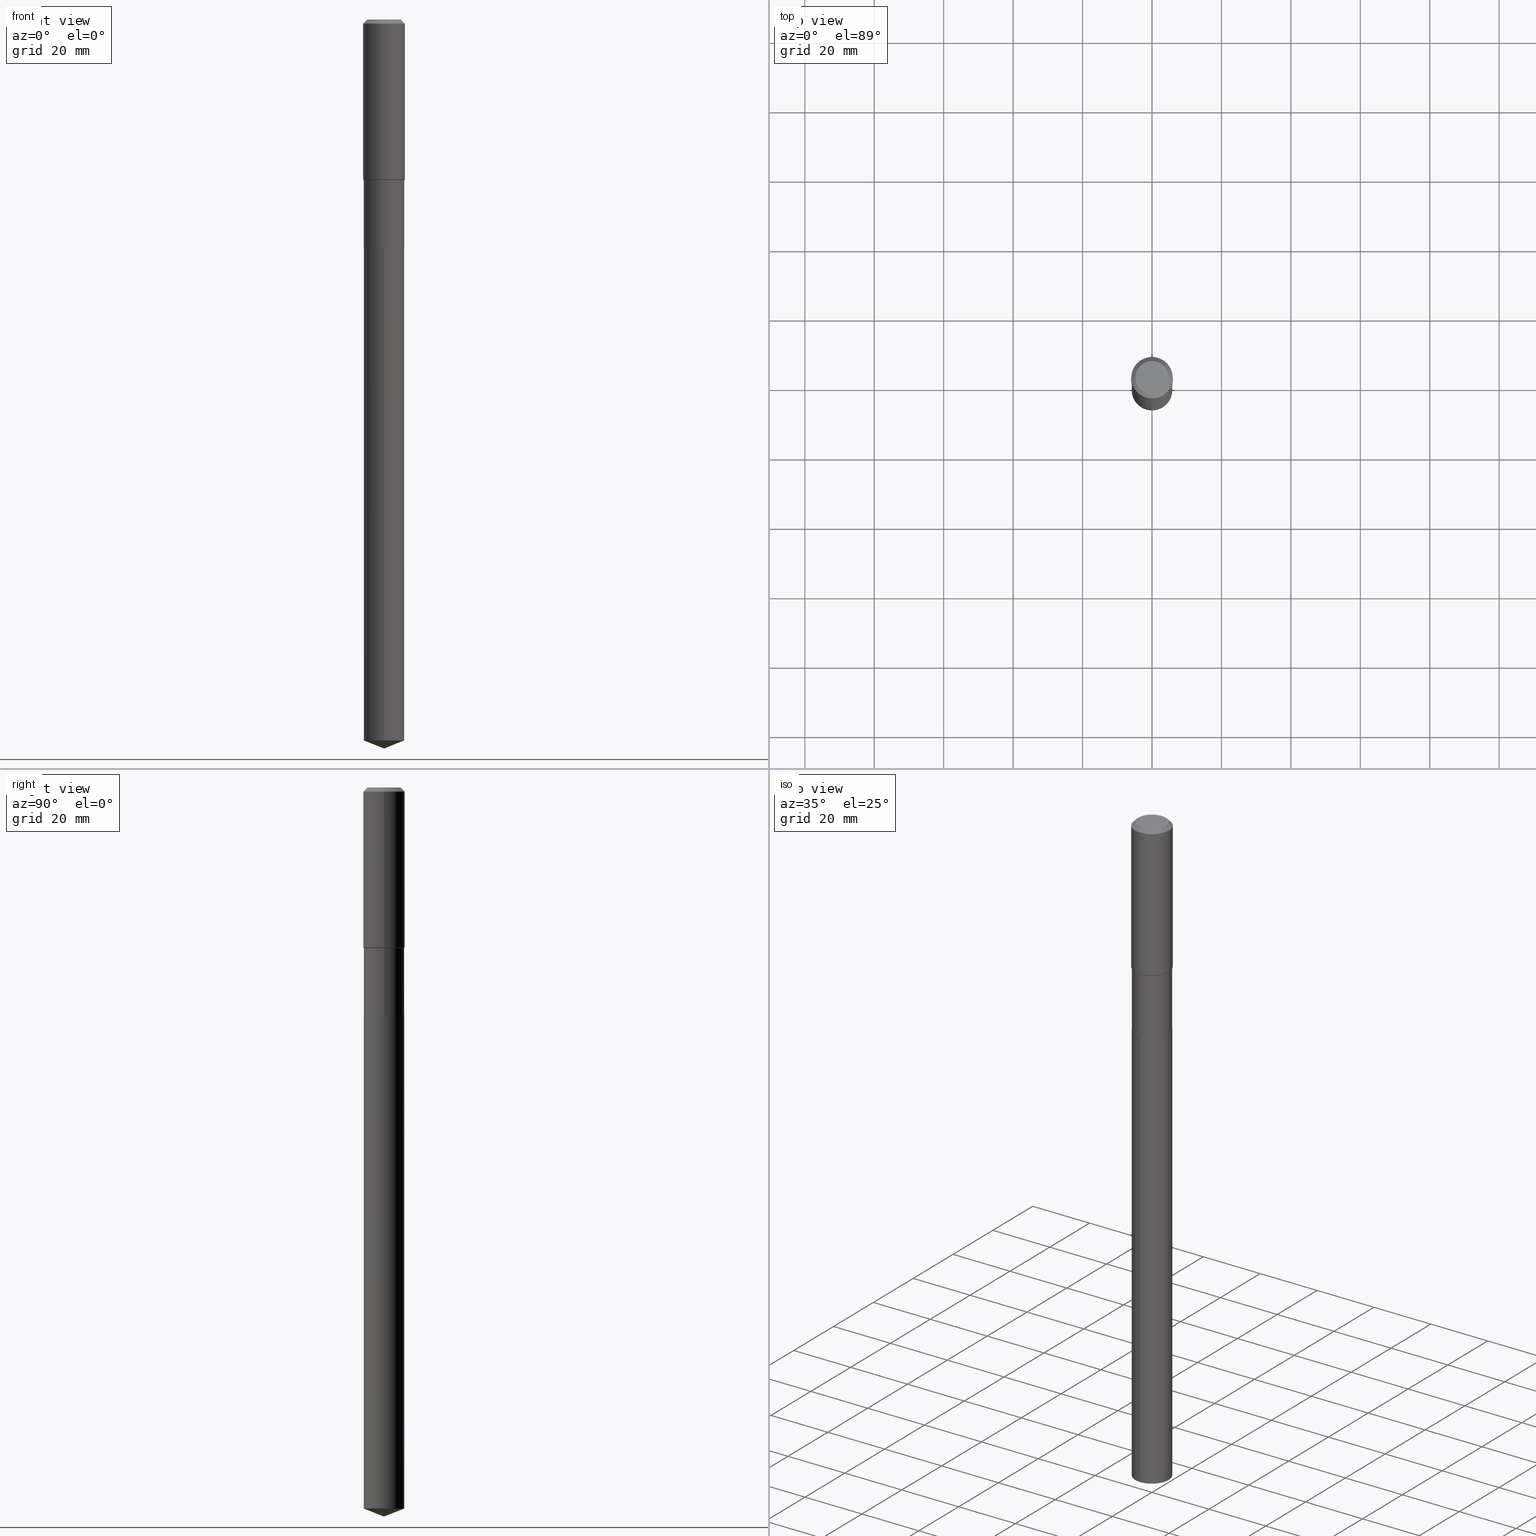
[diagram: canonical four-view strip — front | top / right | iso, engineering-drawing reading convention]
A machine part, canonical four-view strip (front | top / right | iso — engineering-drawing reading convention). The complete STEP part file that produces these views, byte-faithful:
ISO-10303-21;
HEADER;
FILE_DESCRIPTION (( 'STEP AP203' ),
    '1' );
FILE_NAME ('66796.STEP',
    '2024-04-25T06:29:27',
    ( '' ),
    ( '' ),
    'SwSTEP 2.0',
    'SolidWorks 2023',
    '' );
FILE_SCHEMA (( 'CONFIG_CONTROL_DESIGN' ));
ENDSEC;

DATA;
#1 = DIRECTION ( 'NONE',  ( -6.982962677686265922E-15, -1.000000000000000000, 2.372425526412734110E-15 ) ) ;
#2 = EDGE_CURVE ( 'NONE', #56, #345, #234, .T. ) ;
#3 = EDGE_LOOP ( 'NONE', ( #300, #90, #488 ) ) ;
#4 = CONICAL_SURFACE ( 'NONE', #437, 0.2362000000000000210, 0.7853981633974452814 ) ;
#5 = EDGE_CURVE ( 'NONE', #24, #431, #145, .T. ) ;
#6 = PERSON_AND_ORGANIZATION_ROLE ( 'creator' ) ;
#7 = CC_DESIGN_PERSON_AND_ORGANIZATION_ASSIGNMENT ( #400, #146, ( #465 ) ) ;
#8 = CARTESIAN_POINT ( 'NONE',  ( -0.1889600000000000168, 1.401969416799070942E-15, 3.855188123706346622E-18 ) ) ;
#9 = CARTESIAN_POINT ( 'NONE',  ( 2.021924230409164922E-28, -2.886741643243158551E-14, -8.268000000000000682 ) ) ;
#10 = AXIS2_PLACEMENT_3D ( 'NONE', #478, #484, #212 ) ;
#11 = CLOSED_SHELL ( 'NONE', ( #291, #388, #227, #220, #374, #454, #357, #263, #418, #473, #260, #140 ) ) ;
#12 = EDGE_LOOP ( 'NONE', ( #273, #65, #428, #258 ) ) ;
#13 = EDGE_CURVE ( 'NONE', #477, #326, #439, .T. ) ;
#14 = LINE ( 'NONE', #232, #89 ) ;
#15 = CARTESIAN_POINT ( 'NONE',  ( -7.605959371775300167E-28, 1.085917112331004795E-13, 31.10207874015748430 ) ) ;
#16 = EDGE_CURVE ( 'NONE', #102, #243, #286, .T. ) ;
#17 = LINE ( 'NONE', #316, #254 ) ;
#18 = DIRECTION ( 'NONE',  ( -2.438088387897960049E-29, 3.491481338843145188E-15, 1.000000000000000000 ) ) ;
#19 = CONICAL_SURFACE ( 'NONE', #404, 99.94676754584043010, 1.195550537616121067 ) ;
#20 = DIRECTION ( 'NONE',  ( 1.000000000000000000, -6.982962677686266711E-15, 4.876176775795935793E-29 ) ) ;
#21 = AXIS2_PLACEMENT_3D ( 'NONE', #272, #52, #421 ) ;
#22 = AXIS2_PLACEMENT_3D ( 'NONE', #15, #166, #276 ) ;
#23 = EDGE_CURVE ( 'NONE', #431, #477, #370, .T. ) ;
#24 = VERTEX_POINT ( 'NONE', #419 ) ;
#25 = DIRECTION ( 'NONE',  ( -2.445468806185136877E-29, 3.491481338843145188E-15, 1.000000000000000000 ) ) ;
#26 = ORIENTED_EDGE ( 'NONE', *, *, #5, .T. ) ;
#27 = DATE_TIME_ROLE ( 'creation_date' ) ;
#28 = APPLICATION_CONTEXT ( 'configuration controlled 3d designs of mechanical parts and assemblies' ) ;
#29 = DIRECTION ( 'NONE',  ( -2.445481582703130490E-29, 3.491463042142184116E-15, 1.000000000000000000 ) ) ;
#30 = EDGE_CURVE ( 'NONE', #386, #345, #470, .T. ) ;
#31 = VECTOR ( 'NONE', #208, 39.37007874015748854 ) ;
#32 = EDGE_LOOP ( 'NONE', ( #150, #416, #26, #303 ) ) ;
#33 = FACE_OUTER_BOUND ( 'NONE', #3, .T. ) ;
#34 = APPROVAL_ROLE ( '' ) ;
#35 = CYLINDRICAL_SURFACE ( 'NONE', #61, 0.2303000000000000047 ) ;
#36 = DIRECTION ( 'NONE',  ( -2.445468806185136597E-29, 3.491481338843145583E-15, 1.000000000000000000 ) ) ;
#37 = EDGE_CURVE ( 'NONE', #128, #198, #335, .T. ) ;
#38 = DIRECTION ( 'NONE',  ( -2.445468806185136597E-29, 3.491481338843145583E-15, 1.000000000000000000 ) ) ;
#39 = ORIENTED_EDGE ( 'NONE', *, *, #364, .T. ) ;
#40 = CARTESIAN_POINT ( 'NONE',  ( -0.2362000000000002431, -4.658736688134951629E-15, -1.814999999999999947 ) ) ;
#41 = ORIENTED_EDGE ( 'NONE', *, *, #16, .T. ) ;
#42 = FACE_OUTER_BOUND ( 'NONE', #410, .T. ) ;
#43 = DIMENSIONAL_EXPONENTS ( 1.000000000000000000, 0.000000000000000000, 0.000000000000000000, 0.000000000000000000, 0.000000000000000000, 0.000000000000000000, 0.000000000000000000 ) ;
#44 = ORIENTED_EDGE ( 'NONE', *, *, #456, .T. ) ;
#45 = ORIENTED_EDGE ( 'NONE', *, *, #5, .F. ) ;
#46 = EDGE_CURVE ( 'NONE', #198, #128, #297, .T. ) ;
#47 = CONICAL_SURFACE ( 'NONE', #414, 0.2298000000000000043, 0.7853981633972775267 ) ;
#48 = ORIENTED_EDGE ( 'NONE', *, *, #46, .F. ) ;
#49 = CARTESIAN_POINT ( 'NONE',  ( 6.311510441883220673E-29, -9.011164187420277631E-15, -2.580900000000001082 ) ) ;
#50 = VERTEX_POINT ( 'NONE', #281 ) ;
#51 = EDGE_LOOP ( 'NONE', ( #337, #455, #293, #75 ) ) ;
#52 = DIRECTION ( 'NONE',  ( -2.445468806185136597E-29, 3.491481338843145583E-15, 1.000000000000000000 ) ) ;
#53 = EDGE_CURVE ( 'NONE', #431, #114, #197, .T. ) ;
#54 = CARTESIAN_POINT ( 'NONE',  ( -1.608176304670946895E-15, -0.2303000000000284819, -8.177282417465878694 ) ) ;
#55 = CONICAL_SURFACE ( 'NONE', #121, 0.2302999999999998937, 0.7853981633974482790 ) ;
#56 = VERTEX_POINT ( 'NONE', #8 ) ;
#57 = CC_DESIGN_PERSON_AND_ORGANIZATION_ASSIGNMENT ( #432, #302, ( #483 ) ) ;
#58 = CARTESIAN_POINT ( 'NONE',  ( 1.999736057355965212E-28, -2.855072656769672397E-14, -8.177282417465880471 ) ) ;
#59 = DIRECTION ( 'NONE',  ( 0.7071067811865474617, -2.468850131082256666E-15, 0.7071067811865474617 ) ) ;
#60 = LINE ( 'NONE', #362, #91 ) ;
#61 = AXIS2_PLACEMENT_3D ( 'NONE', #217, #377, #1 ) ;
#62 = PRODUCT_DEFINITION_FORMATION_WITH_SPECIFIED_SOURCE ( 'ANY', '', #465, .NOT_KNOWN. ) ;
#63 = LINE ( 'NONE', #397, #343 ) ;
#64 = AXIS2_PLACEMENT_3D ( 'NONE', #323, #194, #344 ) ;
#65 = ORIENTED_EDGE ( 'NONE', *, *, #382, .T. ) ;
#66 = ORIENTED_EDGE ( 'NONE', *, *, #122, .T. ) ;
#67 = AXIS2_PLACEMENT_3D ( 'NONE', #283, #424, #248 ) ;
#68 = CARTESIAN_POINT ( 'NONE',  ( 1.636379920455711329E-15, 0.2302999999999909841, -2.580900000000001526 ) ) ;
#69 = LOCAL_TIME ( 2, 29, 27.00000000000000000, #119 ) ;
#70 = FACE_OUTER_BOUND ( 'NONE', #12, .T. ) ;
#71 = CIRCLE ( 'NONE', #147, 0.2303000000000000047 ) ;
#72 =( NAMED_UNIT ( * ) SI_UNIT ( $, .STERADIAN. ) SOLID_ANGLE_UNIT ( ) );
#73 = FACE_OUTER_BOUND ( 'NONE', #187, .T. ) ;
#74 = APPROVAL_STATUS ( 'not_yet_approved' ) ;
#75 = ORIENTED_EDGE ( 'NONE', *, *, #53, .F. ) ;
#76 = LINE ( 'NONE', #332, #296 ) ;
#77 = DATE_AND_TIME ( #183, #229 ) ;
#78 = EDGE_LOOP ( 'NONE', ( #245, #157, #131, #45 ) ) ;
#79 = DIRECTION ( 'NONE',  ( -2.445468806185136597E-29, 3.491481338843145583E-15, 1.000000000000000000 ) ) ;
#80 = APPROVAL_PERSON_ORGANIZATION ( #480, #170, #34 ) ;
#81 = VECTOR ( 'NONE', #354, 39.37007874015748143 ) ;
#82 = DATE_TIME_ROLE ( 'classification_date' ) ;
#83 = ORIENTED_EDGE ( 'NONE', *, *, #216, .F. ) ;
#84 = PERSON_AND_ORGANIZATION_ROLE ( 'classification_officer' ) ;
#85 = PERSON_AND_ORGANIZATION_ROLE ( 'design_supplier' ) ;
#86 = AXIS2_PLACEMENT_3D ( 'NONE', #101, #240, #394 ) ;
#87 = CC_DESIGN_APPROVAL ( #399, ( #62 ) ) ;
#88 = CARTESIAN_POINT ( 'NONE',  ( 1.155239464041866207E-30, -1.649375784469512845E-16, -0.04724000000000030952 ) ) ;
#89 = VECTOR ( 'NONE', #350, 39.37007874015748143 ) ;
#90 = ORIENTED_EDGE ( 'NONE', *, *, #188, .T. ) ;
#91 = VECTOR ( 'NONE', #202, 39.37007874015748143 ) ;
#92 = DIRECTION ( 'NONE',  ( 1.000000000000000000, -6.982962677686267499E-15, 0.000000000000000000 ) ) ;
#93 = ORIENTED_EDGE ( 'NONE', *, *, #155, .F. ) ;
#94 = CARTESIAN_POINT ( 'NONE',  ( 0.2298000000000000043, -1.061584901075258209E-14, -2.580900000000001082 ) ) ;
#95 = DIRECTION ( 'NONE',  ( -1.000000000000000000, 6.982962677686267499E-15, 0.000000000000000000 ) ) ;
#96 = DIRECTION ( 'NONE',  ( 1.000000000000000000, -6.982962677686266711E-15, 4.876176775795936353E-29 ) ) ;
#97 = AXIS2_PLACEMENT_3D ( 'NONE', #165, #423, #169 ) ;
#98 = DIRECTION ( 'NONE',  ( -2.445468806185136877E-29, 3.491481338843145188E-15, 1.000000000000000000 ) ) ;
#99 = DIRECTION ( 'NONE',  ( -2.445468806185136597E-29, 3.491481338843145583E-15, 1.000000000000000000 ) ) ;
#100 = CARTESIAN_POINT ( 'NONE',  ( 1.636379920455710146E-15, 0.2302999999999714442, -8.177282417465882247 ) ) ;
#101 = CARTESIAN_POINT ( 'NONE',  ( 1.999736057355965212E-28, -2.855072656769672397E-14, -8.177282417465880471 ) ) ;
#102 = VERTEX_POINT ( 'NONE', #54 ) ;
#103 = CARTESIAN_POINT ( 'NONE',  ( -1.608176304671083960E-15, -0.2303000000000090253, -2.580900000000000194 ) ) ;
#104 = SECURITY_CLASSIFICATION ( '', '', #152 ) ;
#105 = CARTESIAN_POINT ( 'NONE',  ( 0.2362000000000000210, -1.814313362916447834E-15, -0.04724000000000030952 ) ) ;
#106 = ORIENTED_EDGE ( 'NONE', *, *, #251, .T. ) ;
#107 = APPROVAL_DATE_TIME ( #77, #399 ) ;
#108 = DIRECTION ( 'NONE',  ( -6.982962677686265922E-15, -1.000000000000000000, 2.372425526412734110E-15 ) ) ;
#109 = AXIS2_PLACEMENT_3D ( 'NONE', #189, #79, #379 ) ;
#110 = CARTESIAN_POINT ( 'NONE',  ( -4.713871149261273121E-47, 6.730158695841826722E-33, 1.927594061857931128E-18 ) ) ;
#111 = AXIS2_PLACEMENT_3D ( 'NONE', #139, #392, #20 ) ;
#112 = CARTESIAN_POINT ( 'NONE',  ( -0.2362000000000000210, 1.484438206022545019E-15, -0.04724000000000030952 ) ) ;
#113 = CALENDAR_DATE ( 2024, 25, 4 ) ;
#114 = VERTEX_POINT ( 'NONE', #237 ) ;
#115 = DIRECTION ( 'NONE',  ( 1.000000000000000000, -6.982962677686265922E-15, 0.000000000000000000 ) ) ;
#116 = PERSON_AND_ORGANIZATION ( #349, #162 ) ;
#117 = ORIENTED_EDGE ( 'NONE', *, *, #456, .F. ) ;
#118 = DIRECTION ( 'NONE',  ( -2.445481582703130490E-29, 3.491463042142184116E-15, 1.000000000000000000 ) ) ;
#119 = COORDINATED_UNIVERSAL_TIME_OFFSET ( 5, 0, .BEHIND. ) ;
#120 = VERTEX_POINT ( 'NONE', #100 ) ;
#121 = AXIS2_PLACEMENT_3D ( 'NONE', #385, #461, #463 ) ;
#122 = EDGE_CURVE ( 'NONE', #345, #386, #459, .T. ) ;
#123 = CALENDAR_DATE ( 2024, 25, 4 ) ;
#124 = AXIS2_PLACEMENT_3D ( 'NONE', #358, #18, #318 ) ;
#125 = DIRECTION ( 'NONE',  ( 1.000000000000000000, -6.982962677686267499E-15, 0.000000000000000000 ) ) ;
#126 = VECTOR ( 'NONE', #59, 39.37007874015748854 ) ;
#127 = PRODUCT_DEFINITION_SHAPE ( 'NONE', 'NONE',  #483 ) ;
#128 = VERTEX_POINT ( 'NONE', #94 ) ;
#129 = MANIFOLD_SOLID_BREP ( 'Body-Move/Copy2[1]', #271 ) ;
#130 = CYLINDRICAL_SURFACE ( 'NONE', #486, 0.2362000000000001321 ) ;
#131 = ORIENTED_EDGE ( 'NONE', *, *, #23, .F. ) ;
#132 = CARTESIAN_POINT ( 'NONE',  ( 0.000000000000000000, 0.000000000000000000, 0.000000000000000000 ) ) ;
#133 = CARTESIAN_POINT ( 'NONE',  ( 1.155239464041866207E-30, -1.649375784469512845E-16, -0.04724000000000030952 ) ) ;
#134 = AXIS2_PLACEMENT_3D ( 'NONE', #262, #255, #115 ) ;
#135 = DIRECTION ( 'NONE',  ( -6.982962677686265922E-15, -1.000000000000000000, 2.372425526412734110E-15 ) ) ;
#136 = CONICAL_SURFACE ( 'NONE', #405, 0.2298000000000000043, 0.7853981633972775267 ) ;
#137 = EDGE_CURVE ( 'NONE', #198, #288, #14, .T. ) ;
#138 = CYLINDRICAL_SURFACE ( 'NONE', #171, 0.2362000000000001321 ) ;
#139 = CARTESIAN_POINT ( 'NONE',  ( 0.000000000000000000, 0.000000000000000000, 0.000000000000000000 ) ) ;
#140 = ADVANCED_FACE ( 'NONE', ( #233 ), #136, .T. ) ;
#141 = EDGE_LOOP ( 'NONE', ( #331, #396, #222, #218 ) ) ;
#142 = DIRECTION ( 'NONE',  ( 1.000000000000000000, -6.982962677686265922E-15, 0.000000000000000000 ) ) ;
#143 = COORDINATED_UNIVERSAL_TIME_OFFSET ( 5, 0, .BEHIND. ) ;
#144 = CYLINDRICAL_SURFACE ( 'NONE', #468, 0.2303000000000000047 ) ;
#145 = LINE ( 'NONE', #482, #230 ) ;
#146 = PERSON_AND_ORGANIZATION_ROLE ( 'design_owner' ) ;
#147 = AXIS2_PLACEMENT_3D ( 'NONE', #58, #201, #356 ) ;
#148 = ORIENTED_EDGE ( 'NONE', *, *, #384, .F. ) ;
#149 = CARTESIAN_POINT ( 'NONE',  ( 1.636379920455573476E-15, 0.2302999999999909841, -2.580900000000001526 ) ) ;
#150 = ORIENTED_EDGE ( 'NONE', *, *, #371, .F. ) ;
#151 = EDGE_LOOP ( 'NONE', ( #355, #39, #305 ) ) ;
#152 = SECURITY_CLASSIFICATION_LEVEL ( 'unclassified' ) ;
#153 = ORIENTED_EDGE ( 'NONE', *, *, #307, .F. ) ;
#154 = CARTESIAN_POINT ( 'NONE',  ( 6.311510441883220673E-29, -9.011164187420277631E-15, -2.580900000000001082 ) ) ;
#155 = EDGE_CURVE ( 'NONE', #225, #56, #223, .T. ) ;
#156 = CIRCLE ( 'NONE', #299, 0.2302999999999998937 ) ;
#157 = ORIENTED_EDGE ( 'NONE', *, *, #371, .T. ) ;
#158 = AXIS2_PLACEMENT_3D ( 'NONE', #49, #457, #135 ) ;
#159 = ORIENTED_EDGE ( 'NONE', *, *, #155, .T. ) ;
#160 = CARTESIAN_POINT ( 'NONE',  ( -0.2298000000000000043, -7.375687753469456961E-15, -2.580900000000001082 ) ) ;
#161 = CC_DESIGN_DATE_AND_TIME_ASSIGNMENT ( #409, #27, ( #483 ) ) ;
#162 = ORGANIZATION ( 'UNSPECIFIED', 'UNSPECIFIED', '' ) ;
#163 = LINE ( 'NONE', #9, #81 ) ;
#164 = AXIS2_PLACEMENT_3D ( 'NONE', #347, #196, #92 ) ;
#165 = CARTESIAN_POINT ( 'NONE',  ( -9.427742298522546243E-47, 1.346031739168365344E-32, 3.855188123715862256E-18 ) ) ;
#166 = DIRECTION ( 'NONE',  ( -2.445481582703130490E-29, 3.491463042142184116E-15, 1.000000000000000000 ) ) ;
#167 = DIRECTION ( 'NONE',  ( -2.445468806185136597E-29, 3.491481338843145583E-15, 1.000000000000000000 ) ) ;
#168 = AXIS2_PLACEMENT_3D ( 'NONE', #110, #295, #441 ) ;
#169 = DIRECTION ( 'NONE',  ( 1.000000000000000000, -6.982962677686266711E-15, 4.876185090822587894E-29 ) ) ;
#170 = APPROVAL ( #372, 'UNSPECIFIED' ) ;
#171 = AXIS2_PLACEMENT_3D ( 'NONE', #284, #241, #451 ) ;
#172 = CARTESIAN_POINT ( 'NONE',  ( 1.155239464041866207E-30, -1.649375784469512845E-16, -0.04724000000000030952 ) ) ;
#173 = ADVANCED_BREP_SHAPE_REPRESENTATION ( '66796', ( #129, #445, #10 ), #182 ) ;
#174 = LINE ( 'NONE', #210, #317 ) ;
#175 = ORIENTED_EDGE ( 'NONE', *, *, #384, .T. ) ;
#176 = FACE_OUTER_BOUND ( 'NONE', #32, .T. ) ;
#177 = ORIENTED_EDGE ( 'NONE', *, *, #325, .T. ) ;
#178 = APPROVAL_PERSON_ORGANIZATION ( #269, #313, #417 ) ;
#179 = APPROVAL_ROLE ( '' ) ;
#180 = DIRECTION ( 'NONE',  ( 0.7071067811864267805, -2.468850131080992517E-15, 0.7071067811866682540 ) ) ;
#181 = CARTESIAN_POINT ( 'NONE',  ( 6.310287707480127872E-29, -9.009418446750855338E-15, -2.580400000000000915 ) ) ;
#182 =( GEOMETRIC_REPRESENTATION_CONTEXT ( 3 ) GLOBAL_UNCERTAINTY_ASSIGNED_CONTEXT ( ( #353 ) ) GLOBAL_UNIT_ASSIGNED_CONTEXT ( ( #412, #253, #72 ) ) REPRESENTATION_CONTEXT ( 'NONE', 'WORKASPACE' ) );
#183 = CALENDAR_DATE ( 2024, 25, 4 ) ;
#184 = EDGE_LOOP ( 'NONE', ( #211, #204, #41, #322 ) ) ;
#185 = FACE_OUTER_BOUND ( 'NONE', #151, .T. ) ;
#186 = APPROVAL_STATUS ( 'not_yet_approved' ) ;
#187 = EDGE_LOOP ( 'NONE', ( #177, #442 ) ) ;
#188 = EDGE_CURVE ( 'NONE', #50, #120, #163, .T. ) ;
#189 = CARTESIAN_POINT ( 'NONE',  ( 4.438525883226022968E-29, -6.337038630000308812E-15, -1.814999999999999947 ) ) ;
#190 = ORIENTED_EDGE ( 'NONE', *, *, #434, .F. ) ;
#191 = CIRCLE ( 'NONE', #109, 0.2362000000000002431 ) ;
#192 = APPROVAL_PERSON_ORGANIZATION ( #116, #399, #179 ) ;
#193 = CONICAL_SURFACE ( 'NONE', #440, 0.2302999999999998937, 0.7853981633974482790 ) ;
#194 = DIRECTION ( 'NONE',  ( -2.445468806185136597E-29, 3.491481338843145583E-15, 1.000000000000000000 ) ) ;
#195 = EDGE_LOOP ( 'NONE', ( #93, #106, #348, #450 ) ) ;
#196 = DIRECTION ( 'NONE',  ( -2.445468806185136597E-29, 3.491481338843145583E-15, 1.000000000000000000 ) ) ;
#197 = LINE ( 'NONE', #387, #126 ) ;
#198 = VERTEX_POINT ( 'NONE', #160 ) ;
#199 = CIRCLE ( 'NONE', #458, 0.2303000000000000047 ) ;
#200 = DIRECTION ( 'NONE',  ( 1.000000000000000000, -6.982962677686267499E-15, 0.000000000000000000 ) ) ;
#201 = DIRECTION ( 'NONE',  ( -2.445481582703130490E-29, 3.491463042142184116E-15, 1.000000000000000000 ) ) ;
#202 = DIRECTION ( 'NONE',  ( -2.445468806185136877E-29, 3.491481338843145188E-15, 1.000000000000000000 ) ) ;
#203 = FACE_OUTER_BOUND ( 'NONE', #474, .T. ) ;
#204 = ORIENTED_EDGE ( 'NONE', *, *, #402, .T. ) ;
#205 = AXIS2_PLACEMENT_3D ( 'NONE', #298, #38, #142 ) ;
#206 = FACE_OUTER_BOUND ( 'NONE', #78, .T. ) ;
#207 = ORIENTED_EDGE ( 'NONE', *, *, #434, .T. ) ;
#208 = DIRECTION ( 'NONE',  ( -0.7071067811865474617, 7.493145998870352582E-15, 0.7071067811865474617 ) ) ;
#209 = CC_DESIGN_DATE_AND_TIME_ASSIGNMENT ( #264, #82, ( #104 ) ) ;
#210 = CARTESIAN_POINT ( 'NONE',  ( -0.2302999999999999214, 1.636379920455510170E-15, -1.132830751285704470E-29 ) ) ;
#211 = ORIENTED_EDGE ( 'NONE', *, *, #352, .F. ) ;
#212 = DIRECTION ( 'NONE',  ( 1.000000000000000000, 0.000000000000000000, 0.000000000000000000 ) ) ;
#213 = CARTESIAN_POINT ( 'NONE',  ( 6.311510441883220673E-29, -9.011164187420277631E-15, -2.580900000000001082 ) ) ;
#214 = PLANE ( 'NONE',  #168 ) ;
#215 = CARTESIAN_POINT ( 'NONE',  ( 4.452954149182515559E-29, -6.357638369899484921E-15, -1.820900000000000185 ) ) ;
#216 = EDGE_CURVE ( 'NONE', #56, #225, #238, .T. ) ;
#217 = CARTESIAN_POINT ( 'NONE',  ( 6.311510441883220673E-29, -9.011164187420277631E-15, -2.580900000000001082 ) ) ;
#218 = ORIENTED_EDGE ( 'NONE', *, *, #16, .F. ) ;
#219 = DIRECTION ( 'NONE',  ( 1.000000000000000000, -6.982962677686265922E-15, 0.000000000000000000 ) ) ;
#220 = ADVANCED_FACE ( 'NONE', ( #314 ), #55, .T. ) ;
#221 = APPLICATION_PROTOCOL_DEFINITION ( 'international standard', 'config_control_design', 1994, #464 ) ;
#222 = ORIENTED_EDGE ( 'NONE', *, *, #325, .F. ) ;
#223 = CIRCLE ( 'NONE', #289, 0.1889600000000000168 ) ;
#224 = EDGE_CURVE ( 'NONE', #490, #243, #327, .T. ) ;
#225 = VERTEX_POINT ( 'NONE', #278 ) ;
#226 = COORDINATED_UNIVERSAL_TIME_OFFSET ( 5, 0, .BEHIND. ) ;
#227 = ADVANCED_FACE ( 'NONE', ( #389 ), #130, .T. ) ;
#228 = CIRCLE ( 'NONE', #205, 0.2362000000000002431 ) ;
#229 = LOCAL_TIME ( 2, 29, 27.00000000000000000, #487 ) ;
#230 = VECTOR ( 'NONE', #375, 39.37007874015748143 ) ;
#231 = CIRCLE ( 'NONE', #134, 0.2303000000000000047 ) ;
#232 = CARTESIAN_POINT ( 'NONE',  ( -0.2298000000000000043, -7.378336980643567373E-15, -2.580900000000001082 ) ) ;
#233 = FACE_OUTER_BOUND ( 'NONE', #446, .T. ) ;
#234 = LINE ( 'NONE', #112, #306 ) ;
#235 = EDGE_CURVE ( 'NONE', #102, #120, #71, .T. ) ;
#236 = DIRECTION ( 'NONE',  ( -2.445468806185136597E-29, 3.491481338843145583E-15, 1.000000000000000000 ) ) ;
#237 = CARTESIAN_POINT ( 'NONE',  ( 0.2362000000000002431, -7.986414414469806915E-15, -1.814999999999999947 ) ) ;
#238 = CIRCLE ( 'NONE', #97, 0.1889600000000000168 ) ;
#239 = CARTESIAN_POINT ( 'NONE',  ( -1.608176304671083960E-15, -0.2303000000000090253, -2.580900000000000194 ) ) ;
#240 = DIRECTION ( 'NONE',  ( -2.445481582703130490E-29, 3.491463042142184116E-15, 1.000000000000000000 ) ) ;
#241 = DIRECTION ( 'NONE',  ( -2.445468806185136597E-29, 3.491481338843145583E-15, 1.000000000000000000 ) ) ;
#242 = CARTESIAN_POINT ( 'NONE',  ( 0.2302999999999998937, -7.965814674570632384E-15, -1.820900000000000185 ) ) ;
#243 = VERTEX_POINT ( 'NONE', #239 ) ;
#244 = LOCAL_TIME ( 2, 29, 27.00000000000000000, #444 ) ;
#245 = ORIENTED_EDGE ( 'NONE', *, *, #307, .T. ) ;
#246 = DIRECTION ( 'NONE',  ( -2.445481582703130490E-29, 3.491463042142184116E-15, 1.000000000000000000 ) ) ;
#247 = AXIS2_PLACEMENT_3D ( 'NONE', #133, #427, #200 ) ;
#248 = DIRECTION ( 'NONE',  ( -1.000000000000000000, 6.982962677686267499E-15, 0.000000000000000000 ) ) ;
#249 = ORIENTED_EDGE ( 'NONE', *, *, #216, .T. ) ;
#250 = MECHANICAL_CONTEXT ( 'NONE', #464, 'mechanical' ) ;
#251 = EDGE_CURVE ( 'NONE', #225, #386, #17, .T. ) ;
#252 = FACE_OUTER_BOUND ( 'NONE', #141, .T. ) ;
#253 =( NAMED_UNIT ( * ) PLANE_ANGLE_UNIT ( ) SI_UNIT ( $, .RADIAN. ) );
#254 = VECTOR ( 'NONE', #393, 39.37007874015748143 ) ;
#255 = DIRECTION ( 'NONE',  ( -2.445468806185136597E-29, 3.491481338843145583E-15, 1.000000000000000000 ) ) ;
#256 = CARTESIAN_POINT ( 'NONE',  ( -0.2302999999999998937, -4.721258449443975343E-15, -1.820900000000000185 ) ) ;
#257 = DATE_AND_TIME ( #113, #351 ) ;
#258 = ORIENTED_EDGE ( 'NONE', *, *, #333, .F. ) ;
#259 = DIRECTION ( 'NONE',  ( 1.000000000000000000, -6.982962677686269077E-15, 0.000000000000000000 ) ) ;
#260 = ADVANCED_FACE ( 'NONE', ( #203 ), #467, .F. ) ;
#261 = CALENDAR_DATE ( 2024, 25, 4 ) ;
#262 = CARTESIAN_POINT ( 'NONE',  ( 6.310287707480127872E-29, -9.009418446750855338E-15, -2.580400000000000915 ) ) ;
#263 = ADVANCED_FACE ( 'NONE', ( #472 ), #138, .T. ) ;
#264 = DATE_AND_TIME ( #415, #69 ) ;
#265 = EDGE_LOOP ( 'NONE', ( #341, #83, #308, #66 ) ) ;
#266 = ORIENTED_EDGE ( 'NONE', *, *, #46, .T. ) ;
#267 = SHAPE_DEFINITION_REPRESENTATION ( #127, #173 ) ;
#268 = ORIENTED_EDGE ( 'NONE', *, *, #37, .T. ) ;
#269 = PERSON_AND_ORGANIZATION ( #349, #162 ) ;
#270 = EDGE_LOOP ( 'NONE', ( #249, #159 ) ) ;
#271 = CLOSED_SHELL ( 'NONE', ( #279, #282, #367, #342, #274 ) ) ;
#272 = CARTESIAN_POINT ( 'NONE',  ( 6.311510441883220673E-29, -9.011164187420277631E-15, -2.580900000000001082 ) ) ;
#273 = ORIENTED_EDGE ( 'NONE', *, *, #13, .F. ) ;
#274 = ADVANCED_FACE ( 'NONE', ( #73 ), #338, .F. ) ;
#275 = CARTESIAN_POINT ( 'NONE',  ( 0.000000000000000000, 0.000000000000000000, 0.000000000000000000 ) ) ;
#276 = DIRECTION ( 'NONE',  ( -6.982962677686265922E-15, -1.000000000000000000, 3.498627837349988051E-15 ) ) ;
#277 = DESIGN_CONTEXT ( 'detailed design', #28, 'design' ) ;
#278 = CARTESIAN_POINT ( 'NONE',  ( 0.1889600000000000168, -1.540873453589747935E-15, 3.855188123725863225E-18 ) ) ;
#279 = ADVANCED_FACE ( 'NONE', ( #252 ), #35, .T. ) ;
#280 = CONICAL_SURFACE ( 'NONE', #67, 0.2362000000000000210, 0.7853981633974452814 ) ;
#281 = CARTESIAN_POINT ( 'NONE',  ( 2.021924172578948554E-28, -2.886741643243158551E-14, -8.268000000000000682 ) ) ;
#282 = ADVANCED_FACE ( 'NONE', ( #33 ), #19, .T. ) ;
#283 = CARTESIAN_POINT ( 'NONE',  ( 1.155239464041866207E-30, -1.649375784469512845E-16, -0.04724000000000030952 ) ) ;
#284 = CARTESIAN_POINT ( 'NONE',  ( 0.000000000000000000, 0.000000000000000000, 0.000000000000000000 ) ) ;
#285 = ORIENTED_EDGE ( 'NONE', *, *, #137, .T. ) ;
#286 = LINE ( 'NONE', #103, #476 ) ;
#287 = DIRECTION ( 'NONE',  ( -2.445468806185136597E-29, 3.491481338843145583E-15, 1.000000000000000000 ) ) ;
#288 = VERTEX_POINT ( 'NONE', #413 ) ;
#289 = AXIS2_PLACEMENT_3D ( 'NONE', #391, #426, #309 ) ;
#290 = CARTESIAN_POINT ( 'NONE',  ( -0.2302999999999998937, -6.047148487869659763E-15, -1.820900000000000185 ) ) ;
#291 = ADVANCED_FACE ( 'NONE', ( #42 ), #47, .T. ) ;
#292 = CARTESIAN_POINT ( 'NONE',  ( 6.311510441883220673E-29, -9.011164187420277631E-15, -2.580900000000001082 ) ) ;
#293 = ORIENTED_EDGE ( 'NONE', *, *, #489, .F. ) ;
#294 = CC_DESIGN_PERSON_AND_ORGANIZATION_ASSIGNMENT ( #401, #6, ( #62 ) ) ;
#295 = DIRECTION ( 'NONE',  ( 2.438088387897960049E-29, -3.491481338843145188E-15, -1.000000000000000000 ) ) ;
#296 = VECTOR ( 'NONE', #481, 39.37007874015748854 ) ;
#297 = CIRCLE ( 'NONE', #164, 0.2298000000000000043 ) ;
#298 = CARTESIAN_POINT ( 'NONE',  ( 4.438525883226022968E-29, -6.337038630000308812E-15, -1.814999999999999947 ) ) ;
#299 = AXIS2_PLACEMENT_3D ( 'NONE', #469, #287, #429 ) ;
#300 = ORIENTED_EDGE ( 'NONE', *, *, #364, .F. ) ;
#301 = DIRECTION ( 'NONE',  ( -2.445481582703130490E-29, 3.491463042142184116E-15, 1.000000000000000000 ) ) ;
#302 = PERSON_AND_ORGANIZATION_ROLE ( 'creator' ) ;
#303 = ORIENTED_EDGE ( 'NONE', *, *, #382, .F. ) ;
#304 = DIRECTION ( 'NONE',  ( -6.982962677686265922E-15, -1.000000000000000000, 3.498627837349988051E-15 ) ) ;
#305 = ORIENTED_EDGE ( 'NONE', *, *, #402, .F. ) ;
#306 = VECTOR ( 'NONE', #479, 39.37007874015748143 ) ;
#307 = EDGE_CURVE ( 'NONE', #24, #288, #199, .T. ) ;
#308 = ORIENTED_EDGE ( 'NONE', *, *, #2, .T. ) ;
#309 = DIRECTION ( 'NONE',  ( 1.000000000000000000, -6.982962677686266711E-15, 4.876185090822587894E-29 ) ) ;
#310 = AXIS2_PLACEMENT_3D ( 'NONE', #213, #407, #340 ) ;
#311 = AXIS2_PLACEMENT_3D ( 'NONE', #88, #36, #125 ) ;
#312 = CARTESIAN_POINT ( 'NONE',  ( 6.311510441883220673E-29, -9.011164187420277631E-15, -2.580900000000001082 ) ) ;
#313 = APPROVAL ( #186, 'UNSPECIFIED' ) ;
#314 = FACE_OUTER_BOUND ( 'NONE', #51, .T. ) ;
#315 = FACE_OUTER_BOUND ( 'NONE', #195, .T. ) ;
#316 = CARTESIAN_POINT ( 'NONE',  ( 0.2362000000000000210, -1.785387205520587177E-15, -0.04724000000000030952 ) ) ;
#317 = VECTOR ( 'NONE', #98, 39.37007874015748143 ) ;
#318 = DIRECTION ( 'NONE',  ( 1.000000000000000000, -6.982962677686265922E-15, 4.876176775795935793E-29 ) ) ;
#319 = EDGE_CURVE ( 'NONE', #288, #24, #231, .T. ) ;
#320 = DIRECTION ( 'NONE',  ( 2.445468806185136597E-29, -3.491481338843145583E-15, -1.000000000000000000 ) ) ;
#321 = CYLINDRICAL_SURFACE ( 'NONE', #111, 0.2302999999999999214 ) ;
#322 = ORIENTED_EDGE ( 'NONE', *, *, #224, .F. ) ;
#323 = CARTESIAN_POINT ( 'NONE',  ( 4.452954149182515559E-29, -6.357638369899484921E-15, -1.820900000000000185 ) ) ;
#324 = FACE_OUTER_BOUND ( 'NONE', #270, .T. ) ;
#325 = EDGE_CURVE ( 'NONE', #243, #490, #369, .T. ) ;
#326 = VERTEX_POINT ( 'NONE', #40 ) ;
#327 = CIRCLE ( 'NONE', #158, 0.2303000000000000047 ) ;
#328 = LENGTH_MEASURE_WITH_UNIT ( LENGTH_MEASURE( 0.02539999999999999897 ), #406 );
#329 = CARTESIAN_POINT ( 'NONE',  ( 6.311510441883220673E-29, -9.011164187420277631E-15, -2.580900000000001082 ) ) ;
#330 = CC_DESIGN_PERSON_AND_ORGANIZATION_ASSIGNMENT ( #453, #84, ( #104 ) ) ;
#331 = ORIENTED_EDGE ( 'NONE', *, *, #235, .T. ) ;
#332 = CARTESIAN_POINT ( 'NONE',  ( 2.021917577595890334E-28, -2.886751087634260203E-14, -8.268000000000000682 ) ) ;
#333 = EDGE_CURVE ( 'NONE', #326, #114, #191, .T. ) ;
#334 = DIRECTION ( 'NONE',  ( -6.982962677686265922E-15, -1.000000000000000000, 2.372425526412734110E-15 ) ) ;
#335 = CIRCLE ( 'NONE', #21, 0.2298000000000000043 ) ;
#336 = LINE ( 'NONE', #435, #360 ) ;
#337 = ORIENTED_EDGE ( 'NONE', *, *, #23, .T. ) ;
#338 = PLANE ( 'NONE',  #310 ) ;
#339 = EDGE_LOOP ( 'NONE', ( #148, #448, #207, #422 ) ) ;
#340 = DIRECTION ( 'NONE',  ( 6.982962677686265922E-15, 1.000000000000000000, -3.491463042142184116E-15 ) ) ;
#341 = ORIENTED_EDGE ( 'NONE', *, *, #251, .F. ) ;
#342 = ADVANCED_FACE ( 'NONE', ( #411 ), #144, .T. ) ;
#343 = VECTOR ( 'NONE', #25, 39.37007874015748143 ) ;
#344 = DIRECTION ( 'NONE',  ( 1.000000000000000000, -6.982962677686269077E-15, 0.000000000000000000 ) ) ;
#345 = VERTEX_POINT ( 'NONE', #403 ) ;
#346 = ORIENTED_EDGE ( 'NONE', *, *, #137, .F. ) ;
#347 = CARTESIAN_POINT ( 'NONE',  ( 6.311510441883220673E-29, -9.011164187420277631E-15, -2.580900000000001082 ) ) ;
#348 = ORIENTED_EDGE ( 'NONE', *, *, #30, .T. ) ;
#349 = PERSON ( 'UNSPECIFIED', 'UNSPECIFIED', 'UNSPECIFIED', ('UNSPECIFIED'), ('UNSPECIFIED'), ('UNSPECIFIED') ) ;
#350 = DIRECTION ( 'NONE',  ( -0.7071067811864267805, 7.493145998869918709E-15, 0.7071067811866682540 ) ) ;
#351 = LOCAL_TIME ( 2, 29, 27.00000000000000000, #143 ) ;
#352 = EDGE_CURVE ( 'NONE', #120, #490, #485, .T. ) ;
#353 = UNCERTAINTY_MEASURE_WITH_UNIT (LENGTH_MEASURE( 1.000000000000000082E-05 ), #412, 'distance_accuracy_value', 'NONE');
#354 = DIRECTION ( 'NONE',  ( 6.611014441532070533E-15, 0.9304175679820277933, 0.3665012267242890864 ) ) ;
#355 = ORIENTED_EDGE ( 'NONE', *, *, #188, .F. ) ;
#356 = DIRECTION ( 'NONE',  ( -6.982962677686265922E-15, -1.000000000000000000, 4.744851052825468220E-15 ) ) ;
#357 = ADVANCED_FACE ( 'NONE', ( #70 ), #193, .T. ) ;
#358 = CARTESIAN_POINT ( 'NONE',  ( 6.311510441883220673E-29, -9.011164187420277631E-15, -2.580900000000001082 ) ) ;
#359 = FACE_OUTER_BOUND ( 'NONE', #265, .T. ) ;
#360 = VECTOR ( 'NONE', #180, 39.37007874015748143 ) ;
#361 = CC_DESIGN_APPROVAL ( #313, ( #104 ) ) ;
#362 = CARTESIAN_POINT ( 'NONE',  ( -0.2362000000000001321, 1.678301941865357577E-15, -1.161852468318209457E-29 ) ) ;
#363 = ORIENTED_EDGE ( 'NONE', *, *, #37, .F. ) ;
#364 = EDGE_CURVE ( 'NONE', #50, #102, #76, .T. ) ;
#365 = EDGE_LOOP ( 'NONE', ( #381, #175, #398, #190 ) ) ;
#366 = APPROVAL_DATE_TIME ( #257, #170 ) ;
#367 = ADVANCED_FACE ( 'NONE', ( #185 ), #471, .T. ) ;
#368 = CARTESIAN_POINT ( 'NONE',  ( -7.605959371775300167E-28, 1.085917112331004795E-13, 31.10207874015748430 ) ) ;
#369 = CIRCLE ( 'NONE', #420, 0.2303000000000000047 ) ;
#370 = CIRCLE ( 'NONE', #64, 0.2302999999999998937 ) ;
#371 = EDGE_CURVE ( 'NONE', #288, #477, #174, .T. ) ;
#372 = APPROVAL_STATUS ( 'not_yet_approved' ) ;
#373 = DIRECTION ( 'NONE',  ( -2.445468806185136597E-29, 3.491481338843145583E-15, 1.000000000000000000 ) ) ;
#374 = ADVANCED_FACE ( 'NONE', ( #206 ), #321, .T. ) ;
#375 = DIRECTION ( 'NONE',  ( -2.445468806185136877E-29, 3.491481338843145188E-15, 1.000000000000000000 ) ) ;
#376 = APPLICATION_PROTOCOL_DEFINITION ( 'international standard', 'config_control_design', 1994, #28 ) ;
#377 = DIRECTION ( 'NONE',  ( -2.445481582703130490E-29, 3.491463042142184116E-15, 1.000000000000000000 ) ) ;
#378 = CC_DESIGN_APPROVAL ( #170, ( #483 ) ) ;
#379 = DIRECTION ( 'NONE',  ( 1.000000000000000000, -6.982962677686265922E-15, 0.000000000000000000 ) ) ;
#380 = DATE_AND_TIME ( #123, #438 ) ;
#381 = ORIENTED_EDGE ( 'NONE', *, *, #489, .T. ) ;
#382 = EDGE_CURVE ( 'NONE', #477, #431, #156, .T. ) ;
#383 = CIRCLE ( 'NONE', #86, 0.2303000000000000047 ) ;
#384 = EDGE_CURVE ( 'NONE', #326, #345, #60, .T. ) ;
#385 = CARTESIAN_POINT ( 'NONE',  ( 4.452954149182515559E-29, -6.357638369899484921E-15, -1.820900000000000185 ) ) ;
#386 = VERTEX_POINT ( 'NONE', #105 ) ;
#387 = CARTESIAN_POINT ( 'NONE',  ( 0.2302999999999998937, -7.965814674570632384E-15, -1.820900000000000185 ) ) ;
#388 = ADVANCED_FACE ( 'NONE', ( #315 ), #280, .T. ) ;
#389 = FACE_OUTER_BOUND ( 'NONE', #365, .T. ) ;
#390 = CC_DESIGN_SECURITY_CLASSIFICATION ( #104, ( #62 ) ) ;
#391 = CARTESIAN_POINT ( 'NONE',  ( -9.427742298522546243E-47, 1.346031739168365344E-32, 3.855188123715862256E-18 ) ) ;
#392 = DIRECTION ( 'NONE',  ( -2.445468806185136597E-29, 3.491481338843145583E-15, 1.000000000000000000 ) ) ;
#393 = DIRECTION ( 'NONE',  ( 0.7071067811865453523, -7.319954787623248157E-15, -0.7071067811865496822 ) ) ;
#394 = DIRECTION ( 'NONE',  ( -6.982962677686265922E-15, -1.000000000000000000, 4.744851052825468220E-15 ) ) ;
#395 = PRODUCT_RELATED_PRODUCT_CATEGORY ( 'detail', '', ( #465 ) ) ;
#396 = ORIENTED_EDGE ( 'NONE', *, *, #352, .T. ) ;
#397 = CARTESIAN_POINT ( 'NONE',  ( 0.2362000000000001321, -1.649375784469497117E-15, 1.151752954443000789E-29 ) ) ;
#398 = ORIENTED_EDGE ( 'NONE', *, *, #30, .F. ) ;
#399 = APPROVAL ( #74, 'UNSPECIFIED' ) ;
#400 = PERSON_AND_ORGANIZATION ( #349, #162 ) ;
#401 = PERSON_AND_ORGANIZATION ( #349, #162 ) ;
#402 = EDGE_CURVE ( 'NONE', #120, #102, #383, .T. ) ;
#403 = CARTESIAN_POINT ( 'NONE',  ( -0.2362000000000000210, -1.572686162358272483E-15, -0.04724000000000030952 ) ) ;
#404 = AXIS2_PLACEMENT_3D ( 'NONE', #368, #29, #304 ) ;
#405 = AXIS2_PLACEMENT_3D ( 'NONE', #312, #167, #425 ) ;
#406 =( LENGTH_UNIT ( ) NAMED_UNIT ( * ) SI_UNIT ( $, .METRE. ) );
#407 = DIRECTION ( 'NONE',  ( 2.445481582703130210E-29, -3.491463042142184116E-15, -1.000000000000000000 ) ) ;
#408 = CC_DESIGN_PERSON_AND_ORGANIZATION_ASSIGNMENT ( #449, #85, ( #62 ) ) ;
#409 = DATE_AND_TIME ( #261, #244 ) ;
#410 = EDGE_LOOP ( 'NONE', ( #268, #285, #153, #117 ) ) ;
#411 = FACE_OUTER_BOUND ( 'NONE', #184, .T. ) ;
#412 =( CONVERSION_BASED_UNIT ( 'INCH', #328 ) LENGTH_UNIT ( ) NAMED_UNIT ( #43 ) );
#413 = CARTESIAN_POINT ( 'NONE',  ( -0.2302999999999999770, -6.047148487869658185E-15, -2.580400000000000915 ) ) ;
#414 = AXIS2_PLACEMENT_3D ( 'NONE', #154, #373, #447 ) ;
#415 = CALENDAR_DATE ( 2024, 25, 4 ) ;
#416 = ORIENTED_EDGE ( 'NONE', *, *, #319, .T. ) ;
#417 = APPROVAL_ROLE ( '' ) ;
#418 = ADVANCED_FACE ( 'NONE', ( #359 ), #4, .T. ) ;
#419 = CARTESIAN_POINT ( 'NONE',  ( 0.2303000000000000047, -1.061759475142200280E-14, -2.580400000000000915 ) ) ;
#420 = AXIS2_PLACEMENT_3D ( 'NONE', #329, #118, #334 ) ;
#421 = DIRECTION ( 'NONE',  ( 1.000000000000000000, -6.982962677686267499E-15, 0.000000000000000000 ) ) ;
#422 = ORIENTED_EDGE ( 'NONE', *, *, #122, .F. ) ;
#423 = DIRECTION ( 'NONE',  ( -2.445468806185136597E-29, 3.491481338843145583E-15, 1.000000000000000000 ) ) ;
#424 = DIRECTION ( 'NONE',  ( 2.445468806185136597E-29, -3.491481338843145583E-15, -1.000000000000000000 ) ) ;
#425 = DIRECTION ( 'NONE',  ( 1.000000000000000000, -6.982962677686267499E-15, 0.000000000000000000 ) ) ;
#426 = DIRECTION ( 'NONE',  ( -2.445468806185136597E-29, 3.491481338843145583E-15, 1.000000000000000000 ) ) ;
#427 = DIRECTION ( 'NONE',  ( -2.445468806185136597E-29, 3.491481338843145583E-15, 1.000000000000000000 ) ) ;
#428 = ORIENTED_EDGE ( 'NONE', *, *, #53, .T. ) ;
#429 = DIRECTION ( 'NONE',  ( 1.000000000000000000, -6.982962677686269077E-15, 0.000000000000000000 ) ) ;
#430 = AXIS2_PLACEMENT_3D ( 'NONE', #132, #236, #466 ) ;
#431 = VERTEX_POINT ( 'NONE', #242 ) ;
#432 = PERSON_AND_ORGANIZATION ( #349, #162 ) ;
#433 = DIRECTION ( 'NONE',  ( -2.445481582703130490E-29, 3.491463042142184116E-15, 1.000000000000000000 ) ) ;
#434 = EDGE_CURVE ( 'NONE', #114, #386, #63, .T. ) ;
#435 = CARTESIAN_POINT ( 'NONE',  ( 0.2298000000000000043, -1.061584901075258209E-14, -2.580900000000001082 ) ) ;
#436 = DIRECTION ( 'NONE',  ( -2.445468806185136597E-29, 3.491481338843145583E-15, 1.000000000000000000 ) ) ;
#437 = AXIS2_PLACEMENT_3D ( 'NONE', #172, #320, #95 ) ;
#438 = LOCAL_TIME ( 2, 29, 27.00000000000000000, #226 ) ;
#439 = LINE ( 'NONE', #256, #31 ) ;
#440 = AXIS2_PLACEMENT_3D ( 'NONE', #215, #443, #259 ) ;
#441 = DIRECTION ( 'NONE',  ( -1.000000000000000000, 6.982962677686265922E-15, -4.876176775795935793E-29 ) ) ;
#442 = ORIENTED_EDGE ( 'NONE', *, *, #224, .T. ) ;
#443 = DIRECTION ( 'NONE',  ( -2.445468806185136597E-29, 3.491481338843145583E-15, 1.000000000000000000 ) ) ;
#444 = COORDINATED_UNIVERSAL_TIME_OFFSET ( 5, 0, .BEHIND. ) ;
#445 = MANIFOLD_SOLID_BREP ( 'Body-Move/Copy2[2]', #11 ) ;
#446 = EDGE_LOOP ( 'NONE', ( #346, #266, #44, #460 ) ) ;
#447 = DIRECTION ( 'NONE',  ( 1.000000000000000000, -6.982962677686267499E-15, 0.000000000000000000 ) ) ;
#448 = ORIENTED_EDGE ( 'NONE', *, *, #333, .T. ) ;
#449 = PERSON_AND_ORGANIZATION ( #349, #162 ) ;
#450 = ORIENTED_EDGE ( 'NONE', *, *, #2, .F. ) ;
#451 = DIRECTION ( 'NONE',  ( 1.000000000000000000, -6.982962677686266711E-15, 4.876176775795936353E-29 ) ) ;
#452 = APPROVAL_DATE_TIME ( #380, #313 ) ;
#453 = PERSON_AND_ORGANIZATION ( #349, #162 ) ;
#454 = ADVANCED_FACE ( 'NONE', ( #176 ), #462, .T. ) ;
#455 = ORIENTED_EDGE ( 'NONE', *, *, #13, .T. ) ;
#456 = EDGE_CURVE ( 'NONE', #128, #24, #336, .T. ) ;
#457 = DIRECTION ( 'NONE',  ( -2.445481582703130490E-29, 3.491463042142184116E-15, 1.000000000000000000 ) ) ;
#458 = AXIS2_PLACEMENT_3D ( 'NONE', #181, #436, #219 ) ;
#459 = CIRCLE ( 'NONE', #247, 0.2362000000000000210 ) ;
#460 = ORIENTED_EDGE ( 'NONE', *, *, #319, .F. ) ;
#461 = DIRECTION ( 'NONE',  ( -2.445468806185136597E-29, 3.491481338843145583E-15, 1.000000000000000000 ) ) ;
#462 = CYLINDRICAL_SURFACE ( 'NONE', #430, 0.2302999999999999214 ) ;
#463 = DIRECTION ( 'NONE',  ( 1.000000000000000000, -6.982962677686269077E-15, 0.000000000000000000 ) ) ;
#464 = APPLICATION_CONTEXT ( 'configuration controlled 3d designs of mechanical parts and assemblies' ) ;
#465 = PRODUCT ( '66796', '66796', '', ( #250 ) ) ;
#466 = DIRECTION ( 'NONE',  ( 1.000000000000000000, -6.982962677686266711E-15, 4.876176775795935793E-29 ) ) ;
#467 = PLANE ( 'NONE',  #124 ) ;
#468 = AXIS2_PLACEMENT_3D ( 'NONE', #292, #433, #108 ) ;
#469 = CARTESIAN_POINT ( 'NONE',  ( 4.452954149182515559E-29, -6.357638369899484921E-15, -1.820900000000000185 ) ) ;
#470 = CIRCLE ( 'NONE', #311, 0.2362000000000000210 ) ;
#471 = CONICAL_SURFACE ( 'NONE', #22, 99.94676754584043010, 1.195550537616121067 ) ;
#472 = FACE_OUTER_BOUND ( 'NONE', #339, .T. ) ;
#473 = ADVANCED_FACE ( 'NONE', ( #324 ), #214, .F. ) ;
#474 = EDGE_LOOP ( 'NONE', ( #363, #48 ) ) ;
#475 = VECTOR ( 'NONE', #301, 39.37007874015748143 ) ;
#476 = VECTOR ( 'NONE', #246, 39.37007874015748143 ) ;
#477 = VERTEX_POINT ( 'NONE', #290 ) ;
#478 = CARTESIAN_POINT ( 'NONE',  ( 0.000000000000000000, 0.000000000000000000, 0.000000000000000000 ) ) ;
#479 = DIRECTION ( 'NONE',  ( -0.7071067811865453523, 2.468850131082234184E-15, -0.7071067811865496822 ) ) ;
#480 = PERSON_AND_ORGANIZATION ( #349, #162 ) ;
#481 = DIRECTION ( 'NONE',  ( -6.497071151882123780E-15, -0.9304175679820252398, 0.3665012267242956367 ) ) ;
#482 = CARTESIAN_POINT ( 'NONE',  ( 0.2302999999999999214, -1.608176304671146674E-15, 1.122983511465803578E-29 ) ) ;
#483 = PRODUCT_DEFINITION ( 'UNKNOWN', '', #62, #277 ) ;
#484 = DIRECTION ( 'NONE',  ( 0.000000000000000000, 0.000000000000000000, 1.000000000000000000 ) ) ;
#485 = LINE ( 'NONE', #149, #475 ) ;
#486 = AXIS2_PLACEMENT_3D ( 'NONE', #275, #99, #96 ) ;
#487 = COORDINATED_UNIVERSAL_TIME_OFFSET ( 5, 0, .BEHIND. ) ;
#488 = ORIENTED_EDGE ( 'NONE', *, *, #235, .F. ) ;
#489 = EDGE_CURVE ( 'NONE', #114, #326, #228, .T. ) ;
#490 = VERTEX_POINT ( 'NONE', #68 ) ;
ENDSEC;
END-ISO-10303-21;
